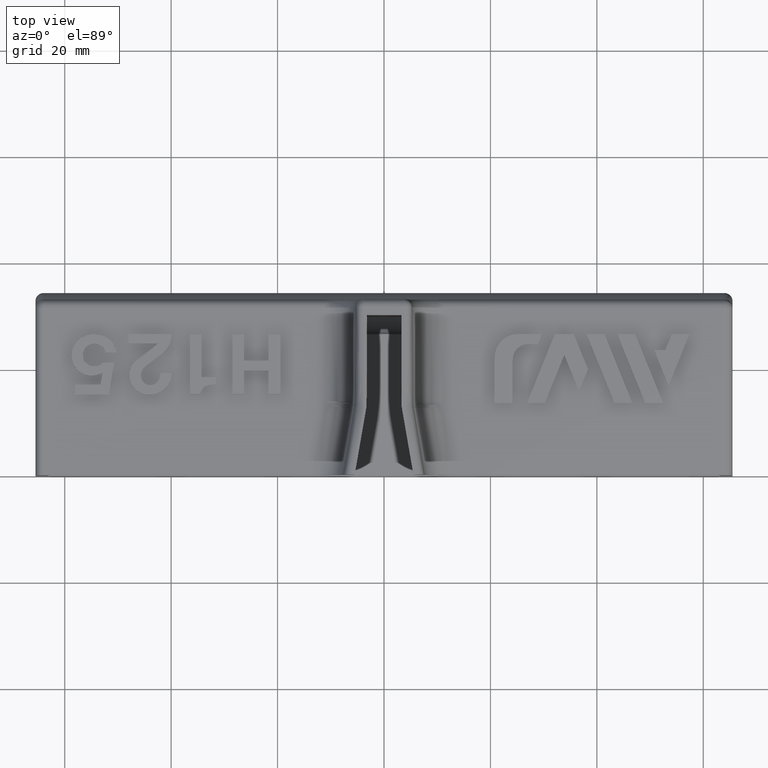
[diagram: clean part render]
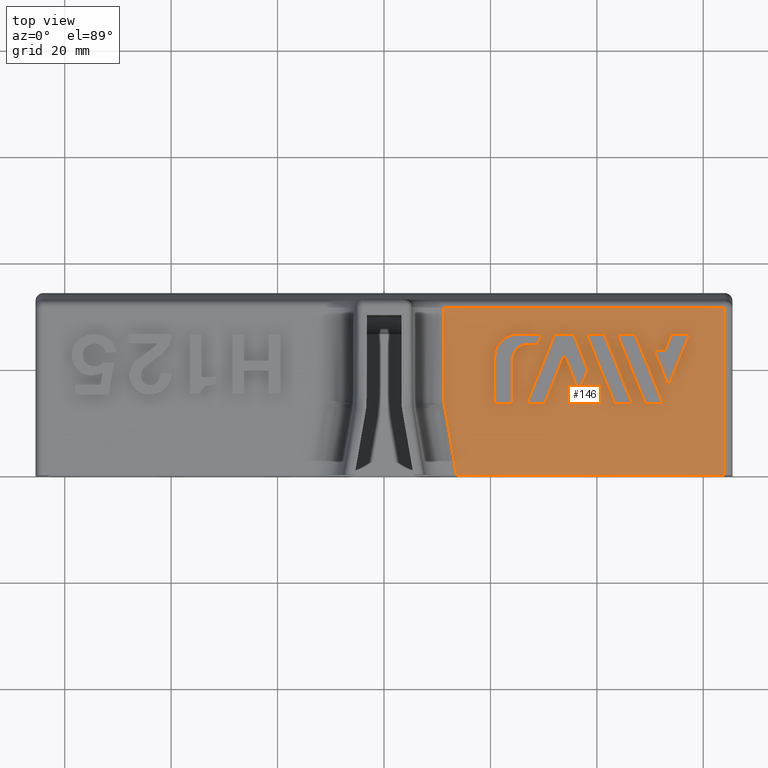
[diagram: same view with one face highlighted and labeled with its STEP entity id]
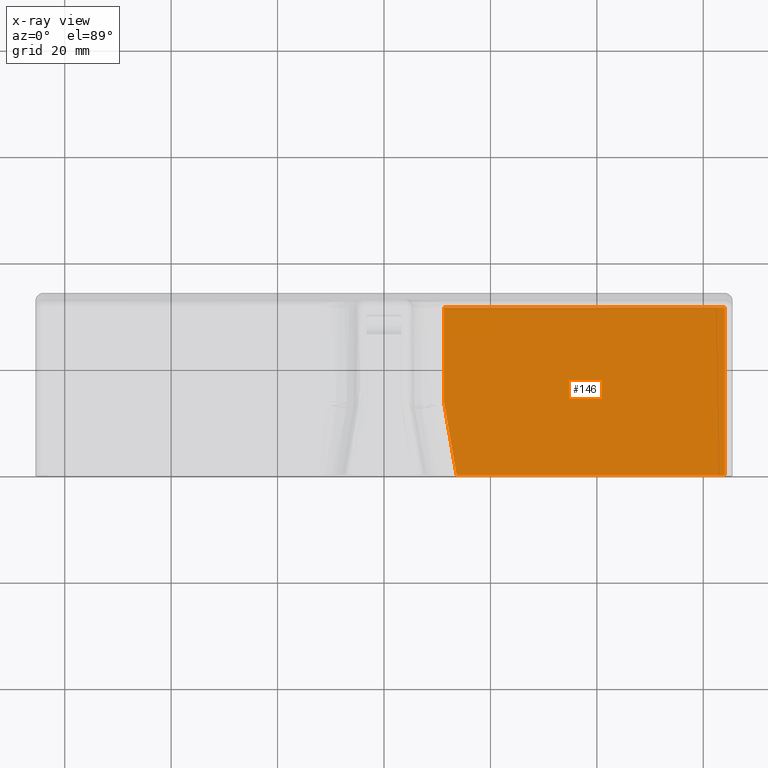
[diagram: x-ray of the same camera — body ghosted, the highlighted face saturated]
A machine part, top view. The second image highlights one B-rep face of the part: STEP entity #146.
The next image is the same camera in x-ray: the body ghosted, the highlighted face saturated — about 0% of this face is hidden behind the body in this view.
In plain terms, the highlighted planar face has unit normal (0, 0, 1).
Its self-contained STEP definition (entity closure, byte-faithful):
#146=ADVANCED_FACE('',(#314),#315,.T.);
#314=FACE_OUTER_BOUND('',#857,.T.);
#315=PLANE('',#858);
#857=EDGE_LOOP('',(#2000,#2001,#2002,#2003,#2004));
#858=AXIS2_PLACEMENT_3D('',#2005,#2006,#2007);
#2000=ORIENTED_EDGE('',*,*,#3005,.T.);
#2001=ORIENTED_EDGE('',*,*,#3006,.T.);
#2002=ORIENTED_EDGE('',*,*,#3007,.F.);
#2003=ORIENTED_EDGE('',*,*,#3008,.T.);
#2004=ORIENTED_EDGE('',*,*,#3009,.T.);
#2005=CARTESIAN_POINT('',(11.25,3.46944695195361E-15,6.5));
#2006=DIRECTION('',(1.43492962746861E-48,6.12323399573677E-17,1.0));
#2007=DIRECTION('',(-1.0,1.22464679914735E-16,-7.4987989133093E-33));
#3005=EDGE_CURVE('',#3435,#3436,#3437,.T.);
#3006=EDGE_CURVE('',#3436,#3375,#3438,.F.);
#3007=EDGE_CURVE('',#3439,#3375,#3440,.F.);
#3008=EDGE_CURVE('',#3439,#3441,#3442,.T.);
#3009=EDGE_CURVE('',#3441,#3435,#3443,.T.);
#3375=VERTEX_POINT('',#4260);
#3435=VERTEX_POINT('',#4436);
#3436=VERTEX_POINT('',#4437);
#3437=LINE('',#4438,#4439);
#3438=LINE('',#4440,#4441);
#3439=VERTEX_POINT('',#4442);
#3440=B_SPLINE_CURVE_WITH_KNOTS('',3,(#4443,#4444,#4445,#4446,#4447,#4448),.UNSPECIFIED.,.F.,.F.,(4,2,4),(0.013071817940745,0.166666666666668,0.167968750000003),.UNSPECIFIED.);
#3441=VERTEX_POINT('',#4449);
#3442=B_SPLINE_CURVE_WITH_KNOTS('',2,(#4450,#4451,#4452,#4453,#4454,#4455,#4456),.UNSPECIFIED.,.F.,.F.,(3,2,2,3),(0.0,0.5,0.75,1.0),.UNSPECIFIED.);
#3443=LINE('',#4457,#4458);
#4260=CARTESIAN_POINT('',(11.25,31.5,6.5));
#4436=CARTESIAN_POINT('',(64.0,-3.46944695195361E-15,6.5));
#4437=CARTESIAN_POINT('',(64.0,31.5,6.5));
#4438=CARTESIAN_POINT('',(64.0,-3.46944695195361E-15,6.5));
#4439=VECTOR('',#5230,1000.0);
#4440=CARTESIAN_POINT('',(11.25,31.5,6.5));
#4441=VECTOR('',#5231,1000.0);
#4442=CARTESIAN_POINT('',(11.25,13.8735234171016,6.5));
#4443=CARTESIAN_POINT('',(11.25,31.5,6.5));
#4444=CARTESIAN_POINT('',(11.25,25.6249622117531,6.5));
#4445=CARTESIAN_POINT('',(11.25,19.7499244235061,6.5));
#4446=CARTESIAN_POINT('',(11.25,13.8744322306427,6.5));
#4447=CARTESIAN_POINT('',(11.2500000774779,13.8739778245769,6.5));
#4448=CARTESIAN_POINT('',(11.2500002324331,13.8735234171022,6.5));
#4449=CARTESIAN_POINT('',(13.6348104205245,3.46944695195361E-15,6.5));
#4450=CARTESIAN_POINT('',(11.2500002324331,13.8735234171022,6.5));
#4451=CARTESIAN_POINT('',(11.250071097857,13.6657100214058,6.5));
#4452=CARTESIAN_POINT('',(11.2717327430087,13.4584856697287,6.5));
#4453=CARTESIAN_POINT('',(11.2824860330869,13.3556152021691,6.5));
#4454=CARTESIAN_POINT('',(11.2987388745919,13.2523641041402,6.5));
#4455=CARTESIAN_POINT('',(11.3043792233521,13.2165320803938,6.5));
#4456=CARTESIAN_POINT('',(13.6348104205245,2.05246266669148E-14,6.5));
#4457=CARTESIAN_POINT('',(11.25,3.46944695195361E-15,6.5));
#4458=VECTOR('',#5232,1000.0);
#5230=DIRECTION('',(1.22464679914735E-16,1.0,-6.12323399573677E-17));
#5231=DIRECTION('',(1.0,-1.22464679914735E-16,7.49879891330929E-33));
#5232=DIRECTION('',(1.0,-1.22464679914735E-16,7.49879891330929E-33));